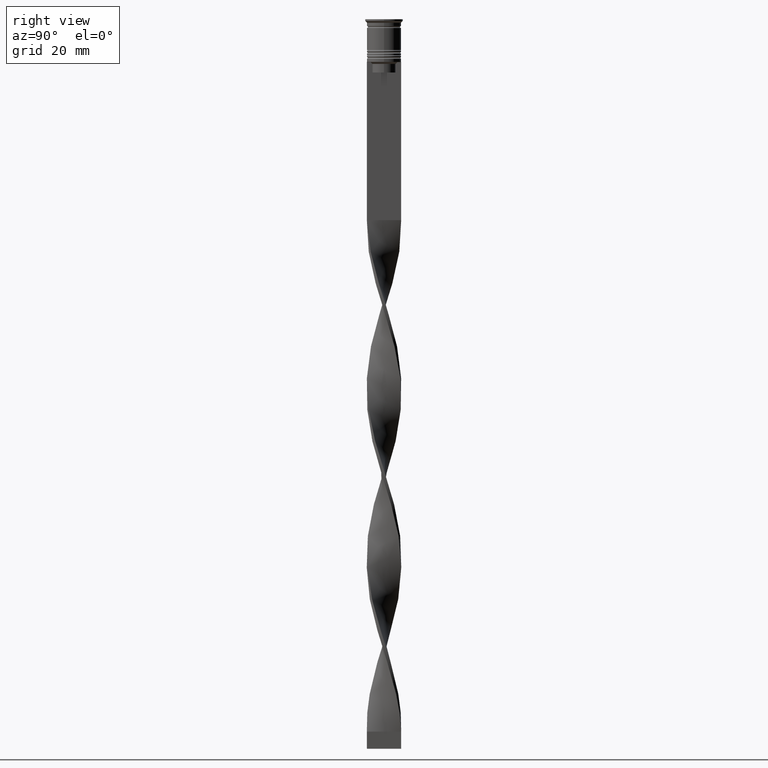
[diagram: clean part render]
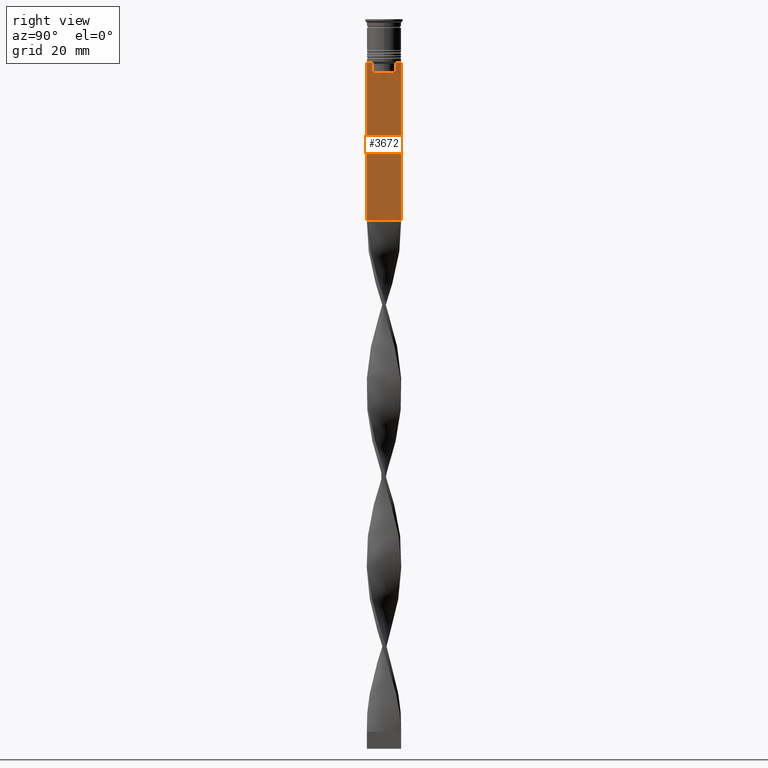
[diagram: same view with one face highlighted and labeled with its STEP entity id]
A machine part, right view. The second image highlights one B-rep face of the part: STEP entity #3672.
In plain terms, the highlighted planar face has unit normal (-1, 0, 0).
Its self-contained STEP definition (entity closure, byte-faithful):
#5 = CARTESIAN_POINT ( 'NONE',  ( 0.5000000000000000000, -3.363034344160045208, 0.000000000000000000 ) ) ;
#31 = VECTOR ( 'NONE', #295, 1000.000000000000000 ) ;
#68 = VERTEX_POINT ( 'NONE', #1905 ) ;
#128 = EDGE_CURVE ( 'NONE', #1724, #2249, #3172, .T. ) ;
#205 = CARTESIAN_POINT ( 'NONE',  ( 0.5000000000000000000, -4.874423042781575788, -12.50000000000000000 ) ) ;
#215 = CARTESIAN_POINT ( 'NONE',  ( 0.5000000000000000000, -3.363034344160045652, -15.50000000000000000 ) ) ;
#259 = LINE ( 'NONE', #2968, #3750 ) ;
#295 = DIRECTION ( 'NONE',  ( 0.000000000000000000, -1.000000000000000000, 0.000000000000000000 ) ) ;
#299 = CARTESIAN_POINT ( 'NONE',  ( 0.5000000000000000000, -4.999999999999999112, -2.450124378879110054 ) ) ;
#322 = FACE_OUTER_BOUND ( 'NONE', #2062, .T. ) ;
#330 = EDGE_CURVE ( 'NONE', #509, #2693, #259, .T. ) ;
#339 = LINE ( 'NONE', #2727, #3053 ) ;
#363 = VECTOR ( 'NONE', #1637, 1000.000000000000000 ) ;
#365 = DIRECTION ( 'NONE',  ( 0.000000000000000000, -1.000000000000000000, 0.000000000000000000 ) ) ;
#409 = VECTOR ( 'NONE', #1324, 1000.000000000000000 ) ;
#419 = VECTOR ( 'NONE', #2775, 1000.000000000000000 ) ;
#446 = CARTESIAN_POINT ( 'NONE',  ( 0.5000000000000000000, 3.399999999999998135, -15.50000000000000000 ) ) ;
#509 = VERTEX_POINT ( 'NONE', #1768 ) ;
#514 = ORIENTED_EDGE ( 'NONE', *, *, #3884, .T. ) ;
#581 = DIRECTION ( 'NONE',  ( -0.000000000000000000, -0.000000000000000000, 1.000000000000000000 ) ) ;
#615 = VERTEX_POINT ( 'NONE', #215 ) ;
#648 = DIRECTION ( 'NONE',  ( 0.000000000000000000, 1.000000000000000000, 0.000000000000000000 ) ) ;
#691 = LINE ( 'NONE', #3401, #2602 ) ;
#709 = CARTESIAN_POINT ( 'NONE',  ( 0.5000000000000000000, -3.531412985305424801, -12.83345201382502765 ) ) ;
#757 = CARTESIAN_POINT ( 'NONE',  ( 0.5000000000000000000, -4.999999999999999112, -12.50000000000000000 ) ) ;
#831 = VERTEX_POINT ( 'NONE', #2614 ) ;
#897 = DIRECTION ( 'NONE',  ( -1.000000000000000000, 0.000000000000000000, 0.000000000000000000 ) ) ;
#915 = CARTESIAN_POINT ( 'NONE',  ( 0.5000000000000000000, -3.363034344160045208, -13.00000000000000178 ) ) ;
#1067 = ORIENTED_EDGE ( 'NONE', *, *, #3770, .T. ) ;
#1072 = ORIENTED_EDGE ( 'NONE', *, *, #128, .T. ) ;
#1075 = LINE ( 'NONE', #1898, #363 ) ;
#1080 = CARTESIAN_POINT ( 'NONE',  ( 0.5000000000000000000, -4.999999999999999112, -58.50000000000000000 ) ) ;
#1129 = ORIENTED_EDGE ( 'NONE', *, *, #3955, .T. ) ;
#1130 = CARTESIAN_POINT ( 'NONE',  ( 0.5000000000000000000, 4.874423042781575788, -12.50000000000000000 ) ) ;
#1163 = CARTESIAN_POINT ( 'NONE',  ( 0.5000000000000000000, 3.363034344160045208, -13.00000000000000178 ) ) ;
#1231 = LINE ( 'NONE', #5, #2212 ) ;
#1248 = VERTEX_POINT ( 'NONE', #1602 ) ;
#1273 = ORIENTED_EDGE ( 'NONE', *, *, #2356, .T. ) ;
#1324 = DIRECTION ( 'NONE',  ( 0.000000000000000000, -1.000000000000000000, 0.000000000000000000 ) ) ;
#1358 = CARTESIAN_POINT ( 'NONE',  ( 0.5000000000000000000, -3.699658232838647365, -12.66676999593996555 ) ) ;
#1464 = CARTESIAN_POINT ( 'NONE',  ( 0.5000000000000000000, 3.363034344160045652, -15.50000000000000000 ) ) ;
#1476 = CARTESIAN_POINT ( 'NONE',  ( 0.5000000000000000000, 3.867815921162742754, -12.50000000000000000 ) ) ;
#1526 = CARTESIAN_POINT ( 'NONE',  ( 0.5000000000000000000, 5.000000000000000888, -12.50000000000000000 ) ) ;
#1588 = LINE ( 'NONE', #2821, #419 ) ;
#1602 = CARTESIAN_POINT ( 'NONE',  ( 0.5000000000000000000, -3.867815921162742754, -12.50000000000000000 ) ) ;
#1637 = DIRECTION ( 'NONE',  ( 0.000000000000000000, 0.000000000000000000, -1.000000000000000000 ) ) ;
#1710 = DIRECTION ( 'NONE',  ( 0.000000000000000000, 0.000000000000000000, -1.000000000000000000 ) ) ;
#1724 = VERTEX_POINT ( 'NONE', #205 ) ;
#1739 = CARTESIAN_POINT ( 'NONE',  ( 0.5000000000000000000, 3.699657965831574913, -12.66677026074361301 ) ) ;
#1768 = CARTESIAN_POINT ( 'NONE',  ( 0.5000000000000000000, 3.363034344160045208, -13.00000000000000178 ) ) ;
#1836 = PLANE ( 'NONE',  #3060 ) ;
#1891 = EDGE_CURVE ( 'NONE', #3327, #68, #1588, .T. ) ;
#1898 = CARTESIAN_POINT ( 'NONE',  ( 0.5000000000000000000, 5.000000000000000888, -2.450124378879110054 ) ) ;
#1905 = CARTESIAN_POINT ( 'NONE',  ( 0.5000000000000000000, 3.867815921162742754, -12.50000000000000000 ) ) ;
#1939 = LINE ( 'NONE', #446, #2279 ) ;
#1982 = B_SPLINE_CURVE_WITH_KNOTS ( 'NONE', 3,
 ( #3224, #709, #1358, #2305 ),
 .UNSPECIFIED., .F., .F.,
 ( 4, 4 ),
 ( 0.01632394437298965648, 0.01703543518243618576 ),
 .UNSPECIFIED. ) ;
#2062 = EDGE_LOOP ( 'NONE', ( #3094, #3608, #3412, #514, #1273, #1129, #2809, #1072, #3072, #1067, #3220, #2829 ) ) ;
#2088 = EDGE_CURVE ( 'NONE', #68, #509, #2424, .T. ) ;
#2178 = CARTESIAN_POINT ( 'NONE',  ( 0.5000000000000000000, -4.999999999999999112, -12.50000000000000000 ) ) ;
#2212 = VECTOR ( 'NONE', #581, 1000.000000000000000 ) ;
#2249 = VERTEX_POINT ( 'NONE', #2342 ) ;
#2279 = VECTOR ( 'NONE', #2880, 1000.000000000000000 ) ;
#2305 = CARTESIAN_POINT ( 'NONE',  ( 0.5000000000000000000, -3.867815921162742754, -12.50000000000000000 ) ) ;
#2342 = CARTESIAN_POINT ( 'NONE',  ( 0.5000000000000000000, -4.999999999999999112, -12.50000000000000000 ) ) ;
#2354 = VERTEX_POINT ( 'NONE', #915 ) ;
#2356 = EDGE_CURVE ( 'NONE', #615, #2354, #1231, .T. ) ;
#2402 = EDGE_CURVE ( 'NONE', #1248, #1724, #339, .T. ) ;
#2423 = CARTESIAN_POINT ( 'NONE',  ( 0.5000000000000000000, -4.999999999999999112, -2.450124378879110054 ) ) ;
#2424 = B_SPLINE_CURVE_WITH_KNOTS ( 'NONE', 3,
 ( #1476, #1739, #2985, #1163 ),
 .UNSPECIFIED., .F., .F.,
 ( 4, 4 ),
 ( 0.006644825462451552783, 0.007355321358912435097 ),
 .UNSPECIFIED. ) ;
#2602 = VECTOR ( 'NONE', #648, 1000.000000000000000 ) ;
#2614 = CARTESIAN_POINT ( 'NONE',  ( 0.5000000000000000000, 5.000000000000000888, -58.50000000000000000 ) ) ;
#2693 = VERTEX_POINT ( 'NONE', #1464 ) ;
#2727 = CARTESIAN_POINT ( 'NONE',  ( 0.5000000000000000000, -4.999999999999999112, -12.50000000000000000 ) ) ;
#2775 = DIRECTION ( 'NONE',  ( 0.000000000000000000, -1.000000000000000000, 0.000000000000000000 ) ) ;
#2791 = LINE ( 'NONE', #299, #3630 ) ;
#2809 = ORIENTED_EDGE ( 'NONE', *, *, #2402, .T. ) ;
#2821 = CARTESIAN_POINT ( 'NONE',  ( 0.5000000000000000000, -4.999999999999999112, -12.50000000000000000 ) ) ;
#2829 = ORIENTED_EDGE ( 'NONE', *, *, #3394, .T. ) ;
#2836 = EDGE_CURVE ( 'NONE', #2249, #3860, #2791, .T. ) ;
#2880 = DIRECTION ( 'NONE',  ( 0.000000000000000000, -1.000000000000000000, 0.000000000000000000 ) ) ;
#2968 = CARTESIAN_POINT ( 'NONE',  ( 0.5000000000000000000, 3.363034344160045208, 0.000000000000000000 ) ) ;
#2985 = CARTESIAN_POINT ( 'NONE',  ( 0.5000000000000000000, 3.531412678228260216, -12.83345231756357840 ) ) ;
#3053 = VECTOR ( 'NONE', #365, 1000.000000000000000 ) ;
#3060 = AXIS2_PLACEMENT_3D ( 'NONE', #2423, #897, #3738 ) ;
#3072 = ORIENTED_EDGE ( 'NONE', *, *, #2836, .T. ) ;
#3094 = ORIENTED_EDGE ( 'NONE', *, *, #1891, .T. ) ;
#3172 = LINE ( 'NONE', #757, #409 ) ;
#3193 = EDGE_CURVE ( 'NONE', #3828, #831, #1075, .T. ) ;
#3220 = ORIENTED_EDGE ( 'NONE', *, *, #3193, .F. ) ;
#3224 = CARTESIAN_POINT ( 'NONE',  ( 0.5000000000000000000, -3.363034344160045208, -13.00000000000000178 ) ) ;
#3327 = VERTEX_POINT ( 'NONE', #1130 ) ;
#3394 = EDGE_CURVE ( 'NONE', #3828, #3327, #3948, .T. ) ;
#3401 = CARTESIAN_POINT ( 'NONE',  ( 0.5000000000000000000, -4.999999999999999112, -58.50000000000000000 ) ) ;
#3412 = ORIENTED_EDGE ( 'NONE', *, *, #330, .T. ) ;
#3608 = ORIENTED_EDGE ( 'NONE', *, *, #2088, .T. ) ;
#3630 = VECTOR ( 'NONE', #3702, 1000.000000000000000 ) ;
#3672 = ADVANCED_FACE ( 'NONE', ( #322 ), #1836, .F. ) ;
#3702 = DIRECTION ( 'NONE',  ( 0.000000000000000000, 0.000000000000000000, -1.000000000000000000 ) ) ;
#3738 = DIRECTION ( 'NONE',  ( 0.000000000000000000, 0.000000000000000000, 1.000000000000000000 ) ) ;
#3750 = VECTOR ( 'NONE', #1710, 1000.000000000000000 ) ;
#3770 = EDGE_CURVE ( 'NONE', #3860, #831, #691, .T. ) ;
#3828 = VERTEX_POINT ( 'NONE', #1526 ) ;
#3860 = VERTEX_POINT ( 'NONE', #1080 ) ;
#3884 = EDGE_CURVE ( 'NONE', #2693, #615, #1939, .T. ) ;
#3948 = LINE ( 'NONE', #2178, #31 ) ;
#3955 = EDGE_CURVE ( 'NONE', #2354, #1248, #1982, .T. ) ;